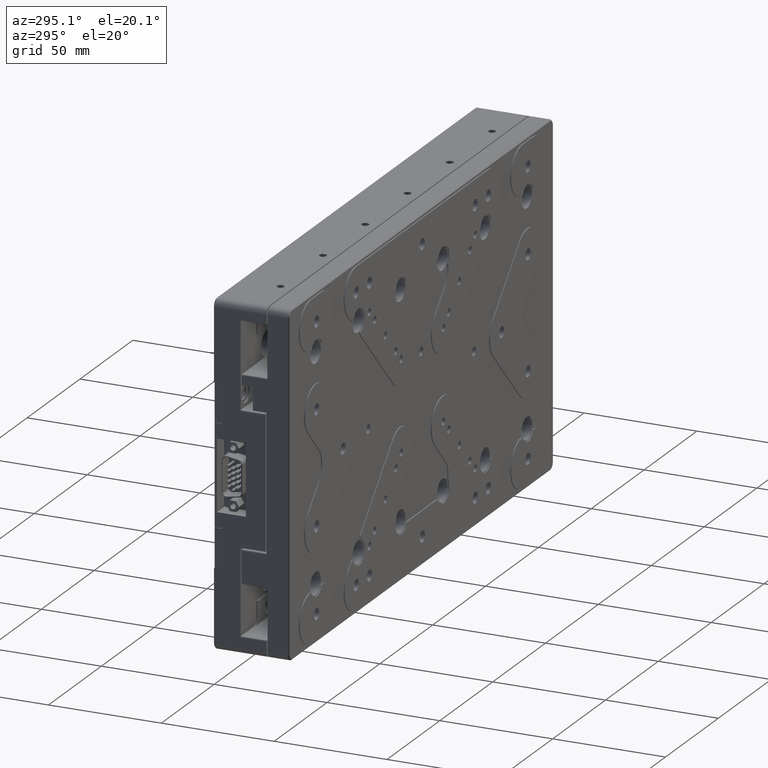
[diagram: clean part render]
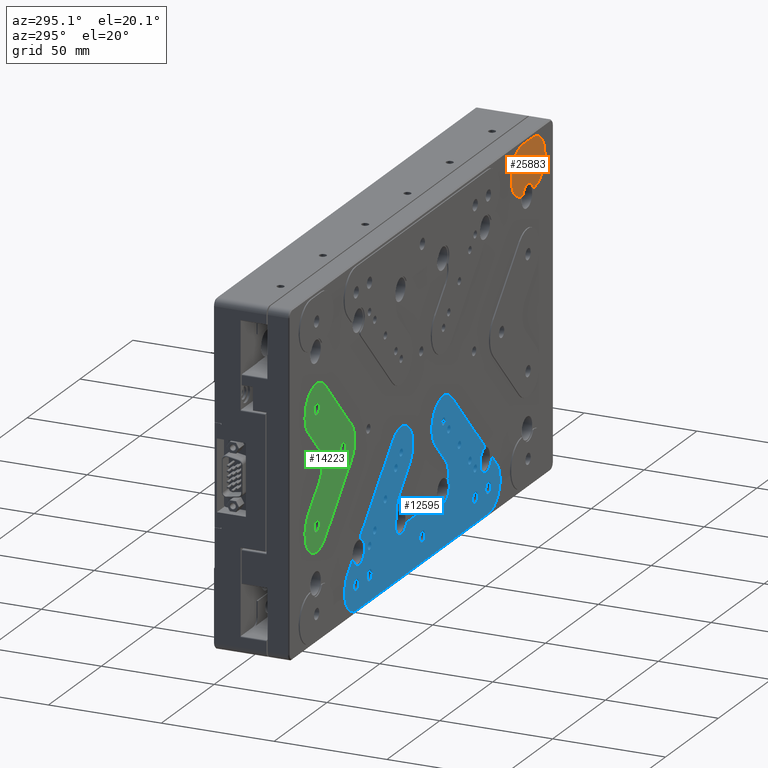
[diagram: same view with three faces highlighted in distinct colors, each labeled with its STEP entity id]
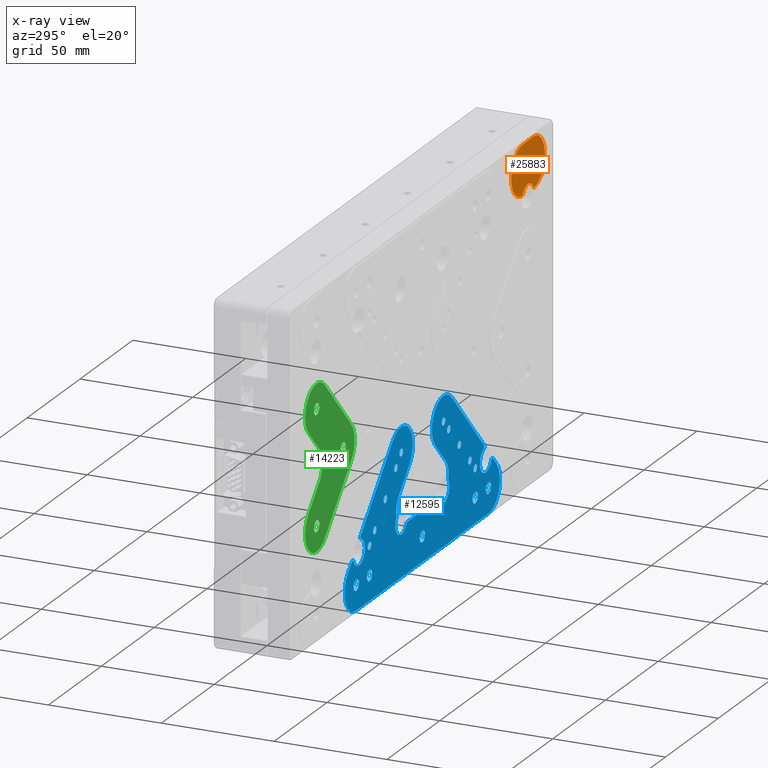
[diagram: x-ray of the same camera — body ghosted, the three highlighted faces saturated]
A machine part, auxiliary view with three faces highlighted in distinct colors.
The next image is the same camera in x-ray (body ghosted, the three faces saturated) — at least one of them is partly hidden behind the body in this view.
Their STEP definitions:

[orange] entity #25883 — the highlighted planar face has unit normal (0, -1, 0).
#203 = CIRCLE ( 'NONE', #4234, 1.000000000000000888 ) ;
#1012 = FACE_OUTER_BOUND ( 'NONE', #24530, .T. ) ;
#1215 = DIRECTION ( 'NONE',  ( -1.000000000000000000, 0.000000000000000000, -0.000000000000000000 ) ) ;
#2543 = EDGE_CURVE ( 'NONE', #8304, #6107, #25544, .T. ) ;
#2579 = ORIENTED_EDGE ( 'NONE', *, *, #9167, .F. ) ;
#3542 = ORIENTED_EDGE ( 'NONE', *, *, #2543, .F. ) ;
#3973 = DIRECTION ( 'NONE',  ( 0.000000000000000000, 0.000000000000000000, -1.000000000000000000 ) ) ;
#4234 = AXIS2_PLACEMENT_3D ( 'NONE', #25409, #9139, #11124 ) ;
#5423 = AXIS2_PLACEMENT_3D ( 'NONE', #22762, #19908, #6324 ) ;
#5477 = DIRECTION ( 'NONE',  ( 0.000000000000000000, 0.000000000000000000, -1.000000000000000000 ) ) ;
#6107 = VERTEX_POINT ( 'NONE', #30914 ) ;
#6324 = DIRECTION ( 'NONE',  ( 0.000000000000000000, 0.000000000000000000, 1.000000000000000000 ) ) ;
#6580 = LINE ( 'NONE', #31235, #32308 ) ;
#6658 = VERTEX_POINT ( 'NONE', #28990 ) ;
#8304 = VERTEX_POINT ( 'NONE', #11648 ) ;
#9139 = DIRECTION ( 'NONE',  ( 0.000000000000000000, 1.000000000000000000, 0.000000000000000000 ) ) ;
#9167 = EDGE_CURVE ( 'NONE', #10941, #14564, #31002, .T. ) ;
#9314 = CARTESIAN_POINT ( 'NONE',  ( 100.0000000000000000, -22.00000000000000000, 62.50000000000000000 ) ) ;
#10619 = AXIS2_PLACEMENT_3D ( 'NONE', #20091, #33705, #22784 ) ;
#10941 = VERTEX_POINT ( 'NONE', #14178 ) ;
#11124 = DIRECTION ( 'NONE',  ( 0.000000000000000000, 0.000000000000000000, 1.000000000000000000 ) ) ;
#11442 = VERTEX_POINT ( 'NONE', #15152 ) ;
#11531 = FACE_BOUND ( 'NONE', #12844, .T. ) ;
#11648 = CARTESIAN_POINT ( 'NONE',  ( 105.0000000000000000, -22.00000000000000000, 73.50000000000000000 ) ) ;
#12598 = EDGE_CURVE ( 'NONE', #6658, #6658, #22993, .T. ) ;
#12844 = EDGE_LOOP ( 'NONE', ( #19273 ) ) ;
#13135 = CARTESIAN_POINT ( 'NONE',  ( 105.0000000000000000, -22.00000000000000000, 62.50000000000000000 ) ) ;
#14178 = CARTESIAN_POINT ( 'NONE',  ( 95.13336153775856019, -22.00000000000000000, 52.06238757369442993 ) ) ;
#14564 = VERTEX_POINT ( 'NONE', #29190 ) ;
#15012 = AXIS2_PLACEMENT_3D ( 'NONE', #9314, #28449, #3973 ) ;
#15152 = CARTESIAN_POINT ( 'NONE',  ( 95.00000000000000000, -22.00000000000000000, 73.50000000000000000 ) ) ;
#16121 = CIRCLE ( 'NONE', #20684, 10.99999999999999645 ) ;
#16302 = ORIENTED_EDGE ( 'NONE', *, *, #19485, .T. ) ;
#17206 = CARTESIAN_POINT ( 'NONE',  ( 94.24851818099000411, -22.00000000000000000, 52.52827622345999714 ) ) ;
#17938 = ORIENTED_EDGE ( 'NONE', *, *, #21471, .F. ) ;
#19101 = VERTEX_POINT ( 'NONE', #20537 ) ;
#19273 = ORIENTED_EDGE ( 'NONE', *, *, #12598, .T. ) ;
#19485 = EDGE_CURVE ( 'NONE', #8304, #11442, #6580, .T. ) ;
#19566 = AXIS2_PLACEMENT_3D ( 'NONE', #17206, #30813, #33676 ) ;
#19908 = DIRECTION ( 'NONE',  ( 0.000000000000000000, 1.000000000000000000, 0.000000000000000000 ) ) ;
#20091 = CARTESIAN_POINT ( 'NONE',  ( -125.0000000000000000, -22.00000000000000000, 75.00000000000000000 ) ) ;
#20202 = DIRECTION ( 'NONE',  ( 0.000000000000000000, 0.000000000000000000, -1.000000000000000000 ) ) ;
#20537 = CARTESIAN_POINT ( 'NONE',  ( 104.8666384622328707, -22.00000000000000000, 52.06238757370267223 ) ) ;
#20684 = AXIS2_PLACEMENT_3D ( 'NONE', #25400, #21035, #20202 ) ;
#21035 = DIRECTION ( 'NONE',  ( -0.000000000000000000, 1.000000000000000000, -0.000000000000000000 ) ) ;
#21471 = EDGE_CURVE ( 'NONE', #14564, #11442, #16121, .T. ) ;
#22762 = CARTESIAN_POINT ( 'NONE',  ( 100.0000000000000000, -22.00000000000000000, 49.50000000000000000 ) ) ;
#22784 = DIRECTION ( 'NONE',  ( 0.000000000000000000, -0.000000000000000000, -1.000000000000000000 ) ) ;
#22993 = CIRCLE ( 'NONE', #15012, 2.500000000000002220 ) ;
#23735 = EDGE_CURVE ( 'NONE', #6107, #19101, #203, .T. ) ;
#24408 = DIRECTION ( 'NONE',  ( -0.000000000000000000, 1.000000000000000000, -0.000000000000000000 ) ) ;
#24530 = EDGE_LOOP ( 'NONE', ( #33260, #25099, #3542, #16302, #17938, #2579 ) ) ;
#25099 = ORIENTED_EDGE ( 'NONE', *, *, #23735, .F. ) ;
#25400 = CARTESIAN_POINT ( 'NONE',  ( 95.00000000000000000, -22.00000000000000000, 62.50000000000000000 ) ) ;
#25409 = CARTESIAN_POINT ( 'NONE',  ( 105.7514818190000057, -22.00000000000000000, 52.52827622345999714 ) ) ;
#25544 = CIRCLE ( 'NONE', #30114, 10.99999999999999645 ) ;
#25883 = ADVANCED_FACE ( 'NONE', ( #11531, #1012 ), #34059, .T. ) ;
#28449 = DIRECTION ( 'NONE',  ( -0.000000000000000000, 1.000000000000000000, -0.000000000000000000 ) ) ;
#28826 = CIRCLE ( 'NONE', #5423, 5.499999999999998224 ) ;
#28990 = CARTESIAN_POINT ( 'NONE',  ( 100.0000000000000000, -22.00000000000000000, 60.00000000000000000 ) ) ;
#29190 = CARTESIAN_POINT ( 'NONE',  ( 94.17336999908440021, -22.00000000000000000, 51.53110384580170233 ) ) ;
#30114 = AXIS2_PLACEMENT_3D ( 'NONE', #13135, #24408, #5477 ) ;
#30813 = DIRECTION ( 'NONE',  ( -0.000000000000000000, 1.000000000000000000, -0.000000000000000000 ) ) ;
#30914 = CARTESIAN_POINT ( 'NONE',  ( 105.8266300008999963, -22.00000000000000000, 51.53110384580300973 ) ) ;
#31002 = CIRCLE ( 'NONE', #19566, 1.000000000000000888 ) ;
#31235 = CARTESIAN_POINT ( 'NONE',  ( 95.00000000000000000, -22.00000000000000000, 73.50000000000000000 ) ) ;
#32308 = VECTOR ( 'NONE', #1215, 1000.000000000000000 ) ;
#33260 = ORIENTED_EDGE ( 'NONE', *, *, #34267, .T. ) ;
#33676 = DIRECTION ( 'NONE',  ( 2.775557561562888827E-14, 0.000000000000000000, -1.000000000000000000 ) ) ;
#33705 = DIRECTION ( 'NONE',  ( 0.000000000000000000, -1.000000000000000000, 0.000000000000000000 ) ) ;
#34059 = PLANE ( 'NONE',  #10619 ) ;
#34267 = EDGE_CURVE ( 'NONE', #10941, #19101, #28826, .T. ) ;

[blue] entity #12595 — the highlighted planar face has unit normal (0, -1, 0).
#80 = CARTESIAN_POINT ( 'NONE',  ( -25.00000000000000000, -22.00000000000000000, -25.00000000000000000 ) ) ;
#273 = DIRECTION ( 'NONE',  ( 9.462128050782584868E-16, 0.000000000000000000, -1.000000000000000000 ) ) ;
#292 = VERTEX_POINT ( 'NONE', #22074 ) ;
#379 = EDGE_LOOP ( 'NONE', ( #30784 ) ) ;
#431 = ORIENTED_EDGE ( 'NONE', *, *, #5588, .T. ) ;
#453 = CARTESIAN_POINT ( 'NONE',  ( -22.28679656440368717, -22.00000000000000000, -37.84314575050630935 ) ) ;
#460 = AXIS2_PLACEMENT_3D ( 'NONE', #15400, #31858, #31489 ) ;
#552 = CARTESIAN_POINT ( 'NONE',  ( 25.00000000000000000, -22.00000000000000000, -26.64999999999999858 ) ) ;
#634 = CIRCLE ( 'NONE', #8642, 1.000000000000000888 ) ;
#648 = ORIENTED_EDGE ( 'NONE', *, *, #2919, .F. ) ;
#666 = EDGE_CURVE ( 'NONE', #27412, #17275, #21666, .T. ) ;
#759 = FACE_BOUND ( 'NONE', #26667, .T. ) ;
#975 = DIRECTION ( 'NONE',  ( 0.000000000000000000, 0.000000000000000000, 1.000000000000000000 ) ) ;
#994 = EDGE_LOOP ( 'NONE', ( #14647 ) ) ;
#1106 = EDGE_CURVE ( 'NONE', #26120, #33553, #12884, .T. ) ;
#1321 = VECTOR ( 'NONE', #13518, 1000.000000000000000 ) ;
#1667 = EDGE_LOOP ( 'NONE', ( #5573 ) ) ;
#1722 = CIRCLE ( 'NONE', #7411, 1.000000000000000888 ) ;
#1723 = DIRECTION ( 'NONE',  ( -0.000000000000000000, 1.000000000000000000, -0.000000000000000000 ) ) ;
#1728 = ORIENTED_EDGE ( 'NONE', *, *, #27016, .T. ) ;
#1735 = CARTESIAN_POINT ( 'NONE',  ( 35.00000000000000000, -22.00000000000000000, -36.64999999999999858 ) ) ;
#1758 = CIRCLE ( 'NONE', #24572, 5.499999999999998224 ) ;
#1768 = LINE ( 'NONE', #12638, #30143 ) ;
#2038 = DIRECTION ( 'NONE',  ( -0.7071067811865474617, 0.000000000000000000, -0.7071067811865474617 ) ) ;
#2110 = VERTEX_POINT ( 'NONE', #2662 ) ;
#2252 = DIRECTION ( 'NONE',  ( 0.000000000000000000, 0.000000000000000000, 1.000000000000000000 ) ) ;
#2269 = CARTESIAN_POINT ( 'NONE',  ( -20.00000000000000000, -22.00000000000000000, -20.00000000000000000 ) ) ;
#2285 = CARTESIAN_POINT ( 'NONE',  ( -16.62994231491000008, -22.00000000000000000, -43.50000000000000711 ) ) ;
#2318 = CARTESIAN_POINT ( 'NONE',  ( -70.27817459304999659, -22.00000000000000000, -54.72182540695000341 ) ) ;
#2422 = DIRECTION ( 'NONE',  ( 0.000000000000000000, 0.000000000000000000, -1.000000000000000000 ) ) ;
#2550 = DIRECTION ( 'NONE',  ( 0.000000000000000000, 0.000000000000000000, -1.000000000000000000 ) ) ;
#2589 = EDGE_CURVE ( 'NONE', #10068, #11600, #22681, .T. ) ;
#2662 = CARTESIAN_POINT ( 'NONE',  ( -14.23371870265999917, -22.00000000000000000, -51.50000000000000711 ) ) ;
#2706 = DIRECTION ( 'NONE',  ( 0.7071067811865474617, 0.000000000000000000, 0.7071067811865474617 ) ) ;
#2713 = DIRECTION ( 'NONE',  ( 0.000000000000000000, 0.000000000000000000, -1.000000000000000000 ) ) ;
#2798 = DIRECTION ( 'NONE',  ( 0.000000000000000000, 1.000000000000000000, 0.000000000000000000 ) ) ;
#2919 = EDGE_CURVE ( 'NONE', #11236, #14562, #23289, .T. ) ;
#2922 = ORIENTED_EDGE ( 'NONE', *, *, #6135, .F. ) ;
#2957 = ORIENTED_EDGE ( 'NONE', *, *, #15835, .T. ) ;
#3042 = ORIENTED_EDGE ( 'NONE', *, *, #29102, .T. ) ;
#3045 = VERTEX_POINT ( 'NONE', #11608 ) ;
#3196 = CARTESIAN_POINT ( 'NONE',  ( -50.00000000000000000, -22.00000000000000000, -51.64999999999999858 ) ) ;
#3556 = AXIS2_PLACEMENT_3D ( 'NONE', #24392, #26733, #2252 ) ;
#3611 = FACE_BOUND ( 'NONE', #994, .T. ) ;
#3721 = VERTEX_POINT ( 'NONE', #20315 ) ;
#3764 = EDGE_LOOP ( 'NONE', ( #10530 ) ) ;
#3768 = DIRECTION ( 'NONE',  ( 0.000000000000000000, 0.000000000000000000, -1.000000000000000000 ) ) ;
#3802 = FACE_BOUND ( 'NONE', #23830, .T. ) ;
#3830 = CIRCLE ( 'NONE', #11245, 8.000000000000000000 ) ;
#3853 = ORIENTED_EDGE ( 'NONE', *, *, #1106, .F. ) ;
#3902 = AXIS2_PLACEMENT_3D ( 'NONE', #2269, #32626, #21554 ) ;
#4306 = VERTEX_POINT ( 'NONE', #18063 ) ;
#4330 = FACE_BOUND ( 'NONE', #21678, .T. ) ;
#4335 = CIRCLE ( 'NONE', #15151, 5.499999999999998224 ) ;
#4392 = ORIENTED_EDGE ( 'NONE', *, *, #22049, .T. ) ;
#4680 = CIRCLE ( 'NONE', #5828, 1.000000000000000888 ) ;
#4697 = CARTESIAN_POINT ( 'NONE',  ( -70.27817459304999659, -22.00000000000000000, -54.72182540695000341 ) ) ;
#4699 = CIRCLE ( 'NONE', #30398, 2.500000000000002220 ) ;
#4780 = CARTESIAN_POINT ( 'NONE',  ( 16.62994231491000008, -22.00000000000000000, -43.50000000000000711 ) ) ;
#5016 = AXIS2_PLACEMENT_3D ( 'NONE', #7445, #2798, #13673 ) ;
#5099 = DIRECTION ( 'NONE',  ( -0.000000000000000000, 1.000000000000000000, -0.000000000000000000 ) ) ;
#5113 = CARTESIAN_POINT ( 'NONE',  ( -20.00000000000000000, -22.00000000000000000, -20.00000000000000000 ) ) ;
#5261 = CIRCLE ( 'NONE', #25231, 10.99999999999999645 ) ;
#5286 = VERTEX_POINT ( 'NONE', #13790 ) ;
#5440 = ORIENTED_EDGE ( 'NONE', *, *, #15031, .T. ) ;
#5491 = DIRECTION ( 'NONE',  ( 0.000000000000000000, 0.000000000000000000, -1.000000000000000000 ) ) ;
#5573 = ORIENTED_EDGE ( 'NONE', *, *, #26910, .T. ) ;
#5588 = EDGE_CURVE ( 'NONE', #26120, #28427, #1758, .T. ) ;
#5712 = DIRECTION ( 'NONE',  ( -0.000000000000000000, 1.000000000000000000, -0.000000000000000000 ) ) ;
#5828 = AXIS2_PLACEMENT_3D ( 'NONE', #11160, #8480, #975 ) ;
#5896 = EDGE_CURVE ( 'NONE', #9034, #14562, #16272, .T. ) ;
#6109 = DIRECTION ( 'NONE',  ( -0.000000000000000000, 1.000000000000000000, -0.000000000000000000 ) ) ;
#6135 = EDGE_CURVE ( 'NONE', #27851, #32617, #634, .T. ) ;
#6150 = AXIS2_PLACEMENT_3D ( 'NONE', #14910, #6352, #23320 ) ;
#6199 = LINE ( 'NONE', #12418, #25523 ) ;
#6352 = DIRECTION ( 'NONE',  ( -0.000000000000000000, 1.000000000000000000, -0.000000000000000000 ) ) ;
#6438 = AXIS2_PLACEMENT_3D ( 'NONE', #22795, #19587, #6723 ) ;
#6444 = CARTESIAN_POINT ( 'NONE',  ( -66.74821156262578370, -22.00000000000000000, -51.19186237652423443 ) ) ;
#6456 = FACE_BOUND ( 'NONE', #16490, .T. ) ;
#6481 = EDGE_LOOP ( 'NONE', ( #18697 ) ) ;
#6614 = VERTEX_POINT ( 'NONE', #23215 ) ;
#6650 = DIRECTION ( 'NONE',  ( 0.000000000000000000, -1.000000000000000000, 0.000000000000000000 ) ) ;
#6679 = CARTESIAN_POINT ( 'NONE',  ( -70.27817459304999659, -22.00000000000000000, -54.72182540695000341 ) ) ;
#6723 = DIRECTION ( 'NONE',  ( 6.938893903907222067E-15, 0.000000000000000000, -1.000000000000000000 ) ) ;
#6732 = EDGE_CURVE ( 'NONE', #26305, #14850, #4680, .T. ) ;
#6747 = EDGE_CURVE ( 'NONE', #28664, #5286, #30930, .T. ) ;
#6783 = VERTEX_POINT ( 'NONE', #17842 ) ;
#7054 = AXIS2_PLACEMENT_3D ( 'NONE', #8167, #27300, #19065 ) ;
#7127 = AXIS2_PLACEMENT_3D ( 'NONE', #11274, #9112, #3768 ) ;
#7287 = ORIENTED_EDGE ( 'NONE', *, *, #14157, .T. ) ;
#7411 = AXIS2_PLACEMENT_3D ( 'NONE', #11756, #28544, #20653 ) ;
#7413 = CARTESIAN_POINT ( 'NONE',  ( 15.12083890225190608, -22.00000000000000000, -52.03846153845997691 ) ) ;
#7445 = CARTESIAN_POINT ( 'NONE',  ( -25.33468588810999833, -22.00000000000000000, -45.78635940414000771 ) ) ;
#7467 = EDGE_CURVE ( 'NONE', #24819, #31562, #34991, .T. ) ;
#7522 = VERTEX_POINT ( 'NONE', #26654 ) ;
#7941 = CARTESIAN_POINT ( 'NONE',  ( -62.50000000000000000, -22.00000000000000000, -62.50000000000000000 ) ) ;
#7948 = DIRECTION ( 'NONE',  ( 0.000000000000000000, 0.000000000000000000, -1.000000000000000000 ) ) ;
#7989 = DIRECTION ( 'NONE',  ( 0.000000000000000000, 0.000000000000000000, -1.000000000000000000 ) ) ;
#8059 = CARTESIAN_POINT ( 'NONE',  ( 45.00000000000000000, -22.00000000000000000, -45.00000000000000000 ) ) ;
#8060 = VERTEX_POINT ( 'NONE', #6679 ) ;
#8089 = LINE ( 'NONE', #15949, #31060 ) ;
#8141 = AXIS2_PLACEMENT_3D ( 'NONE', #8059, #18940, #2713 ) ;
#8167 = CARTESIAN_POINT ( 'NONE',  ( -50.00000000000000000, -22.00000000000000000, -50.00000000000000000 ) ) ;
#8211 = DIRECTION ( 'NONE',  ( -0.000000000000000000, 1.000000000000000000, -0.000000000000000000 ) ) ;
#8461 = DIRECTION ( 'NONE',  ( 0.7071067811865474617, 0.000000000000000000, -0.7071067811865474617 ) ) ;
#8480 = DIRECTION ( 'NONE',  ( 0.000000000000000000, 1.000000000000000000, 0.000000000000000000 ) ) ;
#8642 = AXIS2_PLACEMENT_3D ( 'NONE', #14116, #25721, #33081 ) ;
#9034 = VERTEX_POINT ( 'NONE', #453 ) ;
#9112 = DIRECTION ( 'NONE',  ( -0.000000000000000000, 1.000000000000000000, -0.000000000000000000 ) ) ;
#9249 = CARTESIAN_POINT ( 'NONE',  ( 62.50000000000000000, -22.00000000000000000, -62.50000000000000000 ) ) ;
#9341 = CIRCLE ( 'NONE', #24152, 1.649999999999998579 ) ;
#9578 = CARTESIAN_POINT ( 'NONE',  ( 62.50000000000000000, -22.00000000000000000, -62.50000000000000000 ) ) ;
#9663 = CARTESIAN_POINT ( 'NONE',  ( 66.74821156262500210, -22.00000000000000000, -51.19186237652500893 ) ) ;
#9675 = CARTESIAN_POINT ( 'NONE',  ( 62.50000000000000000, -22.00000000000000000, -73.50000000000000000 ) ) ;
#9882 = CARTESIAN_POINT ( 'NONE',  ( -12.22182540694999986, -22.00000000000000000, -27.77817459305000014 ) ) ;
#9901 = CIRCLE ( 'NONE', #20148, 5.499999999999998224 ) ;
#9976 = DIRECTION ( 'NONE',  ( 0.000000000000000000, 1.000000000000000000, 0.000000000000000000 ) ) ;
#10068 = VERTEX_POINT ( 'NONE', #31257 ) ;
#10216 = DIRECTION ( 'NONE',  ( -0.000000000000000000, 1.000000000000000000, -0.000000000000000000 ) ) ;
#10347 = AXIS2_PLACEMENT_3D ( 'NONE', #16248, #8211, #21074 ) ;
#10395 = CIRCLE ( 'NONE', #3556, 5.499999999999998224 ) ;
#10472 = VECTOR ( 'NONE', #2038, 1000.000000000000114 ) ;
#10530 = ORIENTED_EDGE ( 'NONE', *, *, #14383, .T. ) ;
#10548 = CARTESIAN_POINT ( 'NONE',  ( 58.30813762347576557, -22.00000000000000000, -42.75178843737423051 ) ) ;
#10610 = ORIENTED_EDGE ( 'NONE', *, *, #25169, .T. ) ;
#10632 = CARTESIAN_POINT ( 'NONE',  ( -57.97010302039867469, -22.00000000000000000, -44.38829595416571294 ) ) ;
#10667 = CIRCLE ( 'NONE', #22085, 10.99999999999999645 ) ;
#10718 = CARTESIAN_POINT ( 'NONE',  ( 57.60103084229000103, -22.00000000000000000, -43.45889521856000215 ) ) ;
#10841 = DIRECTION ( 'NONE',  ( -0.000000000000000000, 1.000000000000000000, -0.000000000000000000 ) ) ;
#10964 = DIRECTION ( 'NONE',  ( -0.000000000000000000, 1.000000000000000000, -0.000000000000000000 ) ) ;
#10969 = EDGE_CURVE ( 'NONE', #292, #292, #17280, .T. ) ;
#11150 = ORIENTED_EDGE ( 'NONE', *, *, #666, .T. ) ;
#11160 = CARTESIAN_POINT ( 'NONE',  ( -66.04110478143999785, -22.00000000000000000, -51.89896915770999897 ) ) ;
#11236 = VERTEX_POINT ( 'NONE', #15575 ) ;
#11245 = AXIS2_PLACEMENT_3D ( 'NONE', #4780, #29259, #7989 ) ;
#11274 = CARTESIAN_POINT ( 'NONE',  ( 25.00000000000000000, -22.00000000000000000, -25.00000000000000000 ) ) ;
#11376 = CARTESIAN_POINT ( 'NONE',  ( 0.000000000000000000, -22.00000000000000000, -62.50000000000000000 ) ) ;
#11600 = VERTEX_POINT ( 'NONE', #28564 ) ;
#11608 = CARTESIAN_POINT ( 'NONE',  ( -35.00000000000000000, -22.00000000000000000, -36.64999999999999858 ) ) ;
#11685 = CARTESIAN_POINT ( 'NONE',  ( -62.50000000000000000, -22.00000000000000000, -73.50000000000000000 ) ) ;
#11698 = EDGE_CURVE ( 'NONE', #10068, #9034, #27043, .T. ) ;
#11756 = CARTESIAN_POINT ( 'NONE',  ( -14.23371870265999917, -22.00000000000000000, -52.50000000000000000 ) ) ;
#12151 = AXIS2_PLACEMENT_3D ( 'NONE', #25587, #6650, #17542 ) ;
#12183 = ORIENTED_EDGE ( 'NONE', *, *, #2589, .F. ) ;
#12418 = CARTESIAN_POINT ( 'NONE',  ( 27.77817459305000014, -22.00000000000000000, -12.22182540694999986 ) ) ;
#12442 = VERTEX_POINT ( 'NONE', #1735 ) ;
#12595 = ADVANCED_FACE ( 'NONE', ( #34167, #17707, #22722, #6456, #28809, #17170, #4330, #3802, #22552, #759, #33472, #3611, #17359, #28276, #14499, #25410 ), #14675, .T. ) ;
#12637 = CARTESIAN_POINT ( 'NONE',  ( -20.00000000000000000, -22.00000000000000000, -49.50000000000000000 ) ) ;
#12638 = CARTESIAN_POINT ( 'NONE',  ( 27.77817459305000014, -22.00000000000000000, -12.22182540694999986 ) ) ;
#12841 = VERTEX_POINT ( 'NONE', #16226 ) ;
#12884 = CIRCLE ( 'NONE', #15742, 1.000000000000000888 ) ;
#13051 = CARTESIAN_POINT ( 'NONE',  ( 50.00000000000000000, -22.00000000000000000, -51.64999999999999858 ) ) ;
#13248 = CIRCLE ( 'NONE', #17826, 1.649999999999998579 ) ;
#13314 = ORIENTED_EDGE ( 'NONE', *, *, #17742, .T. ) ;
#13339 = CIRCLE ( 'NONE', #19624, 1.649999999999998579 ) ;
#13479 = CARTESIAN_POINT ( 'NONE',  ( 20.00000000000000000, -22.00000000000000000, -20.00000000000000000 ) ) ;
#13518 = DIRECTION ( 'NONE',  ( -1.000000000000000000, 0.000000000000000000, -0.000000000000000000 ) ) ;
#13673 = DIRECTION ( 'NONE',  ( 0.000000000000000000, 0.000000000000000000, 1.000000000000000000 ) ) ;
#13674 = EDGE_CURVE ( 'NONE', #34002, #34002, #25185, .T. ) ;
#13737 = CARTESIAN_POINT ( 'NONE',  ( 66.04110478143999785, -22.00000000000000000, -51.89896915770999897 ) ) ;
#13790 = CARTESIAN_POINT ( 'NONE',  ( 27.77817459305000014, -22.00000000000000000, -12.22182540694999986 ) ) ;
#13969 = EDGE_LOOP ( 'NONE', ( #31487 ) ) ;
#14116 = CARTESIAN_POINT ( 'NONE',  ( 14.23371870265999917, -22.00000000000000000, -52.50000000000000000 ) ) ;
#14157 = EDGE_CURVE ( 'NONE', #7522, #7522, #4699, .T. ) ;
#14211 = ORIENTED_EDGE ( 'NONE', *, *, #5896, .T. ) ;
#14280 = EDGE_CURVE ( 'NONE', #4306, #32617, #10395, .T. ) ;
#14383 = EDGE_CURVE ( 'NONE', #32702, #32702, #13248, .T. ) ;
#14499 = FACE_BOUND ( 'NONE', #13969, .T. ) ;
#14554 = EDGE_LOOP ( 'NONE', ( #24442 ) ) ;
#14562 = VERTEX_POINT ( 'NONE', #9882 ) ;
#14612 = CARTESIAN_POINT ( 'NONE',  ( 25.33468588810999833, -22.00000000000000000, -45.78635940414000771 ) ) ;
#14647 = ORIENTED_EDGE ( 'NONE', *, *, #16417, .T. ) ;
#14675 = PLANE ( 'NONE',  #12151 ) ;
#14850 = VERTEX_POINT ( 'NONE', #32941 ) ;
#14910 = CARTESIAN_POINT ( 'NONE',  ( 35.00000000000000000, -22.00000000000000000, -35.00000000000000000 ) ) ;
#15031 = EDGE_CURVE ( 'NONE', #35056, #11600, #9901, .T. ) ;
#15055 = AXIS2_PLACEMENT_3D ( 'NONE', #10718, #29322, #29840 ) ;
#15135 = VECTOR ( 'NONE', #24095, 1000.000000000000114 ) ;
#15151 = AXIS2_PLACEMENT_3D ( 'NONE', #29340, #34539, #20751 ) ;
#15160 = AXIS2_PLACEMENT_3D ( 'NONE', #14612, #17470, #31057 ) ;
#15400 = CARTESIAN_POINT ( 'NONE',  ( -45.00000000000000000, -22.00000000000000000, -45.00000000000000000 ) ) ;
#15435 = ORIENTED_EDGE ( 'NONE', *, *, #32763, .T. ) ;
#15514 = EDGE_CURVE ( 'NONE', #24315, #24315, #13339, .T. ) ;
#15575 = CARTESIAN_POINT ( 'NONE',  ( -27.77817459305100556, -22.00000000000000000, -12.22182540694899089 ) ) ;
#15596 = AXIS2_PLACEMENT_3D ( 'NONE', #2285, #10841, #29266 ) ;
#15742 = AXIS2_PLACEMENT_3D ( 'NONE', #13737, #5712, #33229 ) ;
#15835 = EDGE_CURVE ( 'NONE', #28664, #23832, #8089, .T. ) ;
#15921 = EDGE_LOOP ( 'NONE', ( #15435 ) ) ;
#15949 = CARTESIAN_POINT ( 'NONE',  ( 22.28679656439999945, -22.00000000000000000, -37.84314575050999707 ) ) ;
#15988 = DIRECTION ( 'NONE',  ( -0.000000000000000000, 1.000000000000000000, -0.000000000000000000 ) ) ;
#16097 = CARTESIAN_POINT ( 'NONE',  ( -62.50000000000000000, -22.00000000000000000, -62.50000000000000000 ) ) ;
#16226 = CARTESIAN_POINT ( 'NONE',  ( 20.00000000000000000, -22.00000000000000000, -21.64999999999999858 ) ) ;
#16248 = CARTESIAN_POINT ( 'NONE',  ( -50.00000000000000000, -22.00000000000000000, -62.50000000000000000 ) ) ;
#16251 = CIRCLE ( 'NONE', #7127, 1.649999999999998579 ) ;
#16272 = LINE ( 'NONE', #19309, #25723 ) ;
#16417 = EDGE_CURVE ( 'NONE', #19997, #19997, #16251, .T. ) ;
#16490 = EDGE_LOOP ( 'NONE', ( #4392 ) ) ;
#16683 = DIRECTION ( 'NONE',  ( -0.000000000000000000, 1.000000000000000000, -0.000000000000000000 ) ) ;
#16871 = CARTESIAN_POINT ( 'NONE',  ( 50.00000000000000000, -22.00000000000000000, -62.50000000000000000 ) ) ;
#16907 = ORIENTED_EDGE ( 'NONE', *, *, #34375, .T. ) ;
#17170 = FACE_BOUND ( 'NONE', #14554, .T. ) ;
#17209 = EDGE_CURVE ( 'NONE', #24819, #14850, #4335, .T. ) ;
#17253 = AXIS2_PLACEMENT_3D ( 'NONE', #16871, #10964, #22230 ) ;
#17275 = VERTEX_POINT ( 'NONE', #9675 ) ;
#17280 = CIRCLE ( 'NONE', #17253, 2.500000000000002220 ) ;
#17288 = ORIENTED_EDGE ( 'NONE', *, *, #31956, .T. ) ;
#17357 = CIRCLE ( 'NONE', #15055, 1.000000000000000888 ) ;
#17359 = FACE_BOUND ( 'NONE', #33473, .T. ) ;
#17470 = DIRECTION ( 'NONE',  ( -0.000000000000000000, 1.000000000000000000, -0.000000000000000000 ) ) ;
#17497 = DIRECTION ( 'NONE',  ( -0.7071067811865474617, 0.000000000000000000, 0.7071067811865474617 ) ) ;
#17542 = DIRECTION ( 'NONE',  ( 0.000000000000000000, -0.000000000000000000, -1.000000000000000000 ) ) ;
#17601 = ORIENTED_EDGE ( 'NONE', *, *, #27692, .T. ) ;
#17707 = FACE_BOUND ( 'NONE', #3764, .T. ) ;
#17742 = EDGE_CURVE ( 'NONE', #3045, #3045, #28304, .T. ) ;
#17826 = AXIS2_PLACEMENT_3D ( 'NONE', #22238, #16683, #27608 ) ;
#17842 = CARTESIAN_POINT ( 'NONE',  ( -62.50000000000000000, -22.00000000000000000, -65.00000000000000000 ) ) ;
#18063 = CARTESIAN_POINT ( 'NONE',  ( 24.51396498224751497, -22.00000000000000000, -46.35768872658065476 ) ) ;
#18210 = ORIENTED_EDGE ( 'NONE', *, *, #26819, .T. ) ;
#18298 = ORIENTED_EDGE ( 'NONE', *, *, #6732, .F. ) ;
#18697 = ORIENTED_EDGE ( 'NONE', *, *, #15514, .T. ) ;
#18940 = DIRECTION ( 'NONE',  ( -0.000000000000000000, 1.000000000000000000, -0.000000000000000000 ) ) ;
#19056 = CARTESIAN_POINT ( 'NONE',  ( -16.62994231491000008, -22.00000000000000000, -51.50000000000000711 ) ) ;
#19065 = DIRECTION ( 'NONE',  ( 0.000000000000000000, 0.000000000000000000, -1.000000000000000000 ) ) ;
#19164 = ORIENTED_EDGE ( 'NONE', *, *, #26797, .F. ) ;
#19309 = CARTESIAN_POINT ( 'NONE',  ( -12.22182540694999986, -22.00000000000000000, -27.77817459305000014 ) ) ;
#19330 = ORIENTED_EDGE ( 'NONE', *, *, #23948, .F. ) ;
#19373 = CARTESIAN_POINT ( 'NONE',  ( 12.22182540694648978, -22.00000000000000000, -27.77817459305351022 ) ) ;
#19468 = EDGE_CURVE ( 'NONE', #4306, #22414, #31169, .T. ) ;
#19471 = DIRECTION ( 'NONE',  ( -0.000000000000000000, 1.000000000000000000, -0.000000000000000000 ) ) ;
#19491 = AXIS2_PLACEMENT_3D ( 'NONE', #33316, #30965, #273 ) ;
#19587 = DIRECTION ( 'NONE',  ( -0.000000000000000000, 1.000000000000000000, -0.000000000000000000 ) ) ;
#19624 = AXIS2_PLACEMENT_3D ( 'NONE', #5113, #15988, #2422 ) ;
#19677 = DIRECTION ( 'NONE',  ( 0.000000000000000000, 0.000000000000000000, -1.000000000000000000 ) ) ;
#19997 = VERTEX_POINT ( 'NONE', #552 ) ;
#20069 = AXIS2_PLACEMENT_3D ( 'NONE', #13479, #5099, #7948 ) ;
#20142 = DIRECTION ( 'NONE',  ( -0.000000000000000000, 1.000000000000000000, -0.000000000000000000 ) ) ;
#20148 = AXIS2_PLACEMENT_3D ( 'NONE', #12637, #9976, #29109 ) ;
#20163 = EDGE_CURVE ( 'NONE', #6783, #6783, #32337, .T. ) ;
#20315 = CARTESIAN_POINT ( 'NONE',  ( -45.00000000000000000, -22.00000000000000000, -46.64999999999999858 ) ) ;
#20364 = AXIS2_PLACEMENT_3D ( 'NONE', #11376, #21916, #5491 ) ;
#20482 = CARTESIAN_POINT ( 'NONE',  ( 0.000000000000000000, -22.00000000000000000, -65.00000000000000000 ) ) ;
#20653 = DIRECTION ( 'NONE',  ( -1.734723475976805517E-15, 0.000000000000000000, -1.000000000000000000 ) ) ;
#20751 = DIRECTION ( 'NONE',  ( 0.000000000000000000, 0.000000000000000000, 1.000000000000000000 ) ) ;
#20827 = CARTESIAN_POINT ( 'NONE',  ( 57.97010302039867469, -22.00000000000000000, -44.38829595416571294 ) ) ;
#21074 = DIRECTION ( 'NONE',  ( 0.000000000000000000, 0.000000000000000000, -1.000000000000000000 ) ) ;
#21280 = ORIENTED_EDGE ( 'NONE', *, *, #13674, .T. ) ;
#21302 = CIRCLE ( 'NONE', #20069, 1.649999999999998579 ) ;
#21428 = LINE ( 'NONE', #2318, #15135 ) ;
#21517 = CARTESIAN_POINT ( 'NONE',  ( 65.11170404583360494, -22.00000000000000000, -51.52989697960104820 ) ) ;
#21554 = DIRECTION ( 'NONE',  ( 0.000000000000000000, 0.000000000000000000, -1.000000000000000000 ) ) ;
#21582 = DIRECTION ( 'NONE',  ( 0.000000000000000000, 0.000000000000000000, 1.000000000000000000 ) ) ;
#21649 = EDGE_CURVE ( 'NONE', #27851, #2110, #32469, .T. ) ;
#21666 = LINE ( 'NONE', #32573, #26573 ) ;
#21678 = EDGE_LOOP ( 'NONE', ( #23136 ) ) ;
#21762 = EDGE_LOOP ( 'NONE', ( #13314 ) ) ;
#21916 = DIRECTION ( 'NONE',  ( -0.000000000000000000, 1.000000000000000000, -0.000000000000000000 ) ) ;
#22049 = EDGE_CURVE ( 'NONE', #12841, #12841, #21302, .T. ) ;
#22051 = DIRECTION ( 'NONE',  ( 0.000000000000000000, 0.000000000000000000, -1.000000000000000000 ) ) ;
#22074 = CARTESIAN_POINT ( 'NONE',  ( 50.00000000000000000, -22.00000000000000000, -65.00000000000000000 ) ) ;
#22085 = AXIS2_PLACEMENT_3D ( 'NONE', #9249, #20142, #28557 ) ;
#22170 = CARTESIAN_POINT ( 'NONE',  ( -35.00000000000000000, -22.00000000000000000, -35.00000000000000000 ) ) ;
#22230 = DIRECTION ( 'NONE',  ( 0.000000000000000000, 0.000000000000000000, -1.000000000000000000 ) ) ;
#22238 = CARTESIAN_POINT ( 'NONE',  ( 50.00000000000000000, -22.00000000000000000, -50.00000000000000000 ) ) ;
#22414 = VERTEX_POINT ( 'NONE', #27018 ) ;
#22431 = EDGE_CURVE ( 'NONE', #27412, #8060, #5261, .T. ) ;
#22552 = FACE_BOUND ( 'NONE', #30297, .T. ) ;
#22681 = CIRCLE ( 'NONE', #5016, 1.000000000000000888 ) ;
#22688 = CIRCLE ( 'NONE', #460, 1.649999999999998579 ) ;
#22722 = FACE_BOUND ( 'NONE', #6481, .T. ) ;
#22795 = CARTESIAN_POINT ( 'NONE',  ( -57.60103084229000103, -22.00000000000000000, -43.45889521856000215 ) ) ;
#22885 = CARTESIAN_POINT ( 'NONE',  ( 22.28679656440000301, -22.00000000000000000, -37.84314575050999707 ) ) ;
#23089 = CARTESIAN_POINT ( 'NONE',  ( -58.30813762347500528, -22.00000000000000000, -42.75178843737501211 ) ) ;
#23136 = ORIENTED_EDGE ( 'NONE', *, *, #20163, .T. ) ;
#23215 = CARTESIAN_POINT ( 'NONE',  ( -25.00000000000000000, -22.00000000000000000, -26.64999999999999858 ) ) ;
#23289 = CIRCLE ( 'NONE', #3902, 11.00000000000000000 ) ;
#23320 = DIRECTION ( 'NONE',  ( 0.000000000000000000, 0.000000000000000000, -1.000000000000000000 ) ) ;
#23385 = EDGE_CURVE ( 'NONE', #28006, #28006, #33869, .T. ) ;
#23537 = CIRCLE ( 'NONE', #8141, 1.649999999999998579 ) ;
#23598 = CARTESIAN_POINT ( 'NONE',  ( 70.27817459305100556, -22.00000000000000000, -54.72182540694898734 ) ) ;
#23694 = DIRECTION ( 'NONE',  ( 0.000000000000000000, 0.000000000000000000, -1.000000000000000000 ) ) ;
#23830 = EDGE_LOOP ( 'NONE', ( #7287 ) ) ;
#23832 = VERTEX_POINT ( 'NONE', #22885 ) ;
#23875 = VERTEX_POINT ( 'NONE', #23598 ) ;
#23948 = EDGE_CURVE ( 'NONE', #34884, #28427, #17357, .T. ) ;
#23950 = ORIENTED_EDGE ( 'NONE', *, *, #11698, .T. ) ;
#24095 = DIRECTION ( 'NONE',  ( -0.7071067811865474617, 0.000000000000000000, -0.7071067811865474617 ) ) ;
#24152 = AXIS2_PLACEMENT_3D ( 'NONE', #80, #27938, #22051 ) ;
#24267 = CARTESIAN_POINT ( 'NONE',  ( 60.00000000000000000, -22.00000000000000000, -49.50000000000000000 ) ) ;
#24315 = VERTEX_POINT ( 'NONE', #35233 ) ;
#24392 = CARTESIAN_POINT ( 'NONE',  ( 20.00000000000000000, -22.00000000000000000, -49.50000000000000000 ) ) ;
#24442 = ORIENTED_EDGE ( 'NONE', *, *, #27021, .T. ) ;
#24572 = AXIS2_PLACEMENT_3D ( 'NONE', #24267, #34660, #21582 ) ;
#24819 = VERTEX_POINT ( 'NONE', #10632 ) ;
#25169 = EDGE_CURVE ( 'NONE', #11236, #31562, #21428, .T. ) ;
#25185 = CIRCLE ( 'NONE', #10347, 2.500000000000002220 ) ;
#25231 = AXIS2_PLACEMENT_3D ( 'NONE', #16097, #10216, #2550 ) ;
#25410 = FACE_OUTER_BOUND ( 'NONE', #32141, .T. ) ;
#25523 = VECTOR ( 'NONE', #30847, 1000.000000000000114 ) ;
#25587 = CARTESIAN_POINT ( 'NONE',  ( -125.0000000000000000, -22.00000000000000000, 75.00000000000000000 ) ) ;
#25721 = DIRECTION ( 'NONE',  ( 0.000000000000000000, 1.000000000000000000, 0.000000000000000000 ) ) ;
#25723 = VECTOR ( 'NONE', #2706, 1000.000000000000114 ) ;
#26054 = ORIENTED_EDGE ( 'NONE', *, *, #7467, .F. ) ;
#26120 = VERTEX_POINT ( 'NONE', #21517 ) ;
#26305 = VERTEX_POINT ( 'NONE', #6444 ) ;
#26573 = VECTOR ( 'NONE', #29554, 1000.000000000000000 ) ;
#26593 = AXIS2_PLACEMENT_3D ( 'NONE', #22170, #19471, #33082 ) ;
#26631 = AXIS2_PLACEMENT_3D ( 'NONE', #7941, #6109, #19677 ) ;
#26654 = CARTESIAN_POINT ( 'NONE',  ( 62.50000000000000000, -22.00000000000000000, -65.00000000000000000 ) ) ;
#26667 = EDGE_LOOP ( 'NONE', ( #17288 ) ) ;
#26706 = ORIENTED_EDGE ( 'NONE', *, *, #6747, .F. ) ;
#26733 = DIRECTION ( 'NONE',  ( 0.000000000000000000, 1.000000000000000000, 0.000000000000000000 ) ) ;
#26797 = EDGE_CURVE ( 'NONE', #23875, #17275, #10667, .T. ) ;
#26819 = EDGE_CURVE ( 'NONE', #23832, #22414, #3830, .T. ) ;
#26910 = EDGE_CURVE ( 'NONE', #34435, #34435, #31778, .T. ) ;
#27016 = EDGE_CURVE ( 'NONE', #34884, #5286, #6199, .T. ) ;
#27018 = CARTESIAN_POINT ( 'NONE',  ( 24.36749215775230937, -22.00000000000000000, -45.53231947034836224 ) ) ;
#27021 = EDGE_CURVE ( 'NONE', #12442, #12442, #31242, .T. ) ;
#27043 = CIRCLE ( 'NONE', #15596, 8.000000000000000000 ) ;
#27300 = DIRECTION ( 'NONE',  ( -0.000000000000000000, 1.000000000000000000, -0.000000000000000000 ) ) ;
#27412 = VERTEX_POINT ( 'NONE', #11685 ) ;
#27608 = DIRECTION ( 'NONE',  ( 0.000000000000000000, 0.000000000000000000, -1.000000000000000000 ) ) ;
#27692 = EDGE_CURVE ( 'NONE', #3721, #3721, #22688, .T. ) ;
#27851 = VERTEX_POINT ( 'NONE', #35259 ) ;
#27938 = DIRECTION ( 'NONE',  ( -0.000000000000000000, 1.000000000000000000, -0.000000000000000000 ) ) ;
#28006 = VERTEX_POINT ( 'NONE', #3196 ) ;
#28238 = VERTEX_POINT ( 'NONE', #30379 ) ;
#28276 = FACE_BOUND ( 'NONE', #1667, .T. ) ;
#28304 = CIRCLE ( 'NONE', #26593, 1.649999999999998579 ) ;
#28427 = VERTEX_POINT ( 'NONE', #20827 ) ;
#28544 = DIRECTION ( 'NONE',  ( -0.000000000000000000, 1.000000000000000000, -0.000000000000000000 ) ) ;
#28557 = DIRECTION ( 'NONE',  ( 0.000000000000000000, 0.000000000000000000, -1.000000000000000000 ) ) ;
#28564 = CARTESIAN_POINT ( 'NONE',  ( -24.51396498224690745, -22.00000000000000000, -46.35768872658108108 ) ) ;
#28664 = VERTEX_POINT ( 'NONE', #19373 ) ;
#28809 = FACE_BOUND ( 'NONE', #21762, .T. ) ;
#29102 = EDGE_CURVE ( 'NONE', #23875, #33553, #1768, .T. ) ;
#29109 = DIRECTION ( 'NONE',  ( 0.000000000000000000, 0.000000000000000000, 1.000000000000000000 ) ) ;
#29259 = DIRECTION ( 'NONE',  ( -0.000000000000000000, 1.000000000000000000, -0.000000000000000000 ) ) ;
#29266 = DIRECTION ( 'NONE',  ( 0.000000000000000000, 0.000000000000000000, -1.000000000000000000 ) ) ;
#29322 = DIRECTION ( 'NONE',  ( 0.000000000000000000, 1.000000000000000000, 0.000000000000000000 ) ) ;
#29340 = CARTESIAN_POINT ( 'NONE',  ( -60.00000000000000000, -22.00000000000000000, -49.50000000000000000 ) ) ;
#29554 = DIRECTION ( 'NONE',  ( 1.000000000000000000, 0.000000000000000000, -0.000000000000000000 ) ) ;
#29840 = DIRECTION ( 'NONE',  ( 0.000000000000000000, 0.000000000000000000, 1.000000000000000000 ) ) ;
#29919 = ORIENTED_EDGE ( 'NONE', *, *, #14280, .T. ) ;
#30143 = VECTOR ( 'NONE', #17497, 1000.000000000000114 ) ;
#30204 = CARTESIAN_POINT ( 'NONE',  ( -15.12083890225009597, -22.00000000000000000, -52.03846153846092193 ) ) ;
#30297 = EDGE_LOOP ( 'NONE', ( #17601 ) ) ;
#30379 = CARTESIAN_POINT ( 'NONE',  ( 45.00000000000000000, -22.00000000000000000, -46.64999999999999858 ) ) ;
#30398 = AXIS2_PLACEMENT_3D ( 'NONE', #9578, #1723, #23694 ) ;
#30482 = ORIENTED_EDGE ( 'NONE', *, *, #19468, .F. ) ;
#30711 = EDGE_CURVE ( 'NONE', #35056, #2110, #1722, .T. ) ;
#30784 = ORIENTED_EDGE ( 'NONE', *, *, #23385, .T. ) ;
#30847 = DIRECTION ( 'NONE',  ( -0.7071067811865474617, 0.000000000000000000, 0.7071067811865474617 ) ) ;
#30930 = CIRCLE ( 'NONE', #19491, 11.00000000000000000 ) ;
#30965 = DIRECTION ( 'NONE',  ( -0.000000000000000000, 1.000000000000000000, -0.000000000000000000 ) ) ;
#31057 = DIRECTION ( 'NONE',  ( 6.938893903907222067E-15, 0.000000000000000000, -1.000000000000000000 ) ) ;
#31060 = VECTOR ( 'NONE', #8461, 1000.000000000000114 ) ;
#31169 = CIRCLE ( 'NONE', #15160, 1.000000000000000888 ) ;
#31242 = CIRCLE ( 'NONE', #6150, 1.649999999999998579 ) ;
#31257 = CARTESIAN_POINT ( 'NONE',  ( -24.36749215775408572, -22.00000000000000000, -45.53231947034882410 ) ) ;
#31487 = ORIENTED_EDGE ( 'NONE', *, *, #10969, .T. ) ;
#31489 = DIRECTION ( 'NONE',  ( 0.000000000000000000, 0.000000000000000000, -1.000000000000000000 ) ) ;
#31562 = VERTEX_POINT ( 'NONE', #23089 ) ;
#31666 = ORIENTED_EDGE ( 'NONE', *, *, #22431, .F. ) ;
#31693 = LINE ( 'NONE', #4697, #10472 ) ;
#31778 = CIRCLE ( 'NONE', #20364, 2.500000000000002220 ) ;
#31858 = DIRECTION ( 'NONE',  ( -0.000000000000000000, 1.000000000000000000, -0.000000000000000000 ) ) ;
#31956 = EDGE_CURVE ( 'NONE', #28238, #28238, #23537, .T. ) ;
#32084 = ORIENTED_EDGE ( 'NONE', *, *, #17209, .T. ) ;
#32141 = EDGE_LOOP ( 'NONE', ( #10610, #26054, #32084, #18298, #16907, #31666, #11150, #19164, #3042, #3853, #431, #19330, #1728, #26706, #2957, #18210, #30482, #29919, #2922, #33650, #34306, #5440, #12183, #23950, #14211, #648 ) ) ;
#32337 = CIRCLE ( 'NONE', #26631, 2.500000000000002220 ) ;
#32469 = LINE ( 'NONE', #19056, #1321 ) ;
#32573 = CARTESIAN_POINT ( 'NONE',  ( 62.50000000000000000, -22.00000000000000000, -73.50000000000000000 ) ) ;
#32617 = VERTEX_POINT ( 'NONE', #7413 ) ;
#32626 = DIRECTION ( 'NONE',  ( -0.000000000000000000, 1.000000000000000000, -0.000000000000000000 ) ) ;
#32702 = VERTEX_POINT ( 'NONE', #13051 ) ;
#32763 = EDGE_CURVE ( 'NONE', #6614, #6614, #9341, .T. ) ;
#32941 = CARTESIAN_POINT ( 'NONE',  ( -65.11170404583428706, -22.00000000000000000, -51.52989697960132531 ) ) ;
#33081 = DIRECTION ( 'NONE',  ( 0.000000000000000000, 0.000000000000000000, 1.000000000000000000 ) ) ;
#33082 = DIRECTION ( 'NONE',  ( 0.000000000000000000, 0.000000000000000000, -1.000000000000000000 ) ) ;
#33229 = DIRECTION ( 'NONE',  ( 0.000000000000000000, 0.000000000000000000, -1.000000000000000000 ) ) ;
#33316 = CARTESIAN_POINT ( 'NONE',  ( 20.00000000000000000, -22.00000000000000000, -20.00000000000000000 ) ) ;
#33472 = FACE_BOUND ( 'NONE', #15921, .T. ) ;
#33473 = EDGE_LOOP ( 'NONE', ( #21280 ) ) ;
#33553 = VERTEX_POINT ( 'NONE', #9663 ) ;
#33650 = ORIENTED_EDGE ( 'NONE', *, *, #21649, .T. ) ;
#33869 = CIRCLE ( 'NONE', #7054, 1.649999999999998579 ) ;
#34002 = VERTEX_POINT ( 'NONE', #34172 ) ;
#34167 = FACE_BOUND ( 'NONE', #379, .T. ) ;
#34172 = CARTESIAN_POINT ( 'NONE',  ( -50.00000000000000000, -22.00000000000000000, -65.00000000000000000 ) ) ;
#34306 = ORIENTED_EDGE ( 'NONE', *, *, #30711, .F. ) ;
#34375 = EDGE_CURVE ( 'NONE', #26305, #8060, #31693, .T. ) ;
#34435 = VERTEX_POINT ( 'NONE', #20482 ) ;
#34539 = DIRECTION ( 'NONE',  ( 0.000000000000000000, 1.000000000000000000, 0.000000000000000000 ) ) ;
#34660 = DIRECTION ( 'NONE',  ( 0.000000000000000000, 1.000000000000000000, 0.000000000000000000 ) ) ;
#34884 = VERTEX_POINT ( 'NONE', #10548 ) ;
#34991 = CIRCLE ( 'NONE', #6438, 1.000000000000000888 ) ;
#35056 = VERTEX_POINT ( 'NONE', #30204 ) ;
#35233 = CARTESIAN_POINT ( 'NONE',  ( -20.00000000000000000, -22.00000000000000000, -21.64999999999999858 ) ) ;
#35259 = CARTESIAN_POINT ( 'NONE',  ( 14.23371870265999917, -22.00000000000000000, -51.50000000000000711 ) ) ;

[green] entity #14223 — the highlighted planar face has unit normal (0, -1, 0).
#171 = AXIS2_PLACEMENT_3D ( 'NONE', #5918, #33088, #24496 ) ;
#740 = ORIENTED_EDGE ( 'NONE', *, *, #18743, .T. ) ;
#789 = VERTEX_POINT ( 'NONE', #29715 ) ;
#1432 = VECTOR ( 'NONE', #13422, 1000.000000000000114 ) ;
#1439 = ORIENTED_EDGE ( 'NONE', *, *, #25392, .F. ) ;
#2135 = VERTEX_POINT ( 'NONE', #29637 ) ;
#2154 = ORIENTED_EDGE ( 'NONE', *, *, #34407, .T. ) ;
#2227 = VERTEX_POINT ( 'NONE', #18730 ) ;
#2740 = CARTESIAN_POINT ( 'NONE',  ( -92.22182540695000341, -22.00000000000000000, 32.77817459304999659 ) ) ;
#2848 = DIRECTION ( 'NONE',  ( -0.000000000000000000, 1.000000000000000000, -0.000000000000000000 ) ) ;
#3725 = AXIS2_PLACEMENT_3D ( 'NONE', #6400, #14629, #17489 ) ;
#4411 = PLANE ( 'NONE',  #12104 ) ;
#4834 = DIRECTION ( 'NONE',  ( 0.7071067811865474617, 0.000000000000000000, 0.7071067811865474617 ) ) ;
#5267 = DIRECTION ( 'NONE',  ( 0.000000000000000000, -1.000000000000000000, 0.000000000000000000 ) ) ;
#5642 = CARTESIAN_POINT ( 'NONE',  ( -100.0000000000000000, -22.00000000000000000, -27.50000000000000000 ) ) ;
#5918 = CARTESIAN_POINT ( 'NONE',  ( -100.0000000000000000, -22.00000000000000000, 25.00000000000000000 ) ) ;
#6400 = CARTESIAN_POINT ( 'NONE',  ( -75.00000000000000000, -22.00000000000000000, 0.000000000000000000 ) ) ;
#7264 = FACE_BOUND ( 'NONE', #9415, .T. ) ;
#7353 = CARTESIAN_POINT ( 'NONE',  ( -97.62741699796151806, -22.00000000000000000, 7.071067811856498686 ) ) ;
#7807 = EDGE_CURVE ( 'NONE', #26752, #33707, #35305, .T. ) ;
#8039 = DIRECTION ( 'NONE',  ( 0.000000000000000000, 0.000000000000000000, -1.000000000000000000 ) ) ;
#8128 = VERTEX_POINT ( 'NONE', #5642 ) ;
#8364 = VERTEX_POINT ( 'NONE', #11825 ) ;
#8657 = VECTOR ( 'NONE', #4834, 1000.000000000000114 ) ;
#8863 = EDGE_LOOP ( 'NONE', ( #8970 ) ) ;
#8970 = ORIENTED_EDGE ( 'NONE', *, *, #9739, .T. ) ;
#9415 = EDGE_LOOP ( 'NONE', ( #13228 ) ) ;
#9739 = EDGE_CURVE ( 'NONE', #8128, #8128, #18495, .T. ) ;
#10430 = AXIS2_PLACEMENT_3D ( 'NONE', #12583, #23487, #34409 ) ;
#10798 = CARTESIAN_POINT ( 'NONE',  ( -97.62741699797000194, -22.00000000000000000, 7.071067811865001218 ) ) ;
#11262 = ORIENTED_EDGE ( 'NONE', *, *, #31866, .T. ) ;
#11607 = CARTESIAN_POINT ( 'NONE',  ( -100.0000000000000000, -22.00000000000000000, 22.50000000000000355 ) ) ;
#11825 = CARTESIAN_POINT ( 'NONE',  ( -92.22182540695000341, -22.00000000000000000, 32.77817459304999659 ) ) ;
#12104 = AXIS2_PLACEMENT_3D ( 'NONE', #29591, #5267, #22069 ) ;
#12266 = AXIS2_PLACEMENT_3D ( 'NONE', #18466, #20977, #12400 ) ;
#12400 = DIRECTION ( 'NONE',  ( -2.775557561562891351E-15, 0.000000000000000000, -1.000000000000000000 ) ) ;
#12583 = CARTESIAN_POINT ( 'NONE',  ( -75.00000000000000000, -22.00000000000000000, 0.000000000000000000 ) ) ;
#12725 = CARTESIAN_POINT ( 'NONE',  ( -67.22182540695050079, -22.00000000000000000, 7.778174593050491303 ) ) ;
#12864 = AXIS2_PLACEMENT_3D ( 'NONE', #22485, #2848, #27491 ) ;
#12937 = EDGE_LOOP ( 'NONE', ( #18776, #2154, #1439, #20603, #29288, #740, #16289, #26833 ) ) ;
#12961 = FACE_OUTER_BOUND ( 'NONE', #12937, .T. ) ;
#13228 = ORIENTED_EDGE ( 'NONE', *, *, #21957, .T. ) ;
#13413 = CIRCLE ( 'NONE', #12266, 10.00000000000000000 ) ;
#13422 = DIRECTION ( 'NONE',  ( -0.7071067811865474617, 0.000000000000000000, -0.7071067811865474617 ) ) ;
#13677 = EDGE_CURVE ( 'NONE', #789, #34135, #15890, .T. ) ;
#14223 = ADVANCED_FACE ( 'NONE', ( #7264, #26556, #18152, #12961 ), #4411, .T. ) ;
#14629 = DIRECTION ( 'NONE',  ( -0.000000000000000000, 1.000000000000000000, -0.000000000000000000 ) ) ;
#15814 = CARTESIAN_POINT ( 'NONE',  ( -67.22182540694950603, -22.00000000000000000, -7.778174593051500274 ) ) ;
#15890 = LINE ( 'NONE', #18911, #8657 ) ;
#16289 = ORIENTED_EDGE ( 'NONE', *, *, #33704, .F. ) ;
#16435 = CARTESIAN_POINT ( 'NONE',  ( -100.0000000000000000, -22.00000000000000000, -25.00000000000000000 ) ) ;
#16818 = CIRCLE ( 'NONE', #28229, 11.00000000000000355 ) ;
#16873 = EDGE_CURVE ( 'NONE', #33707, #17903, #13413, .T. ) ;
#17489 = DIRECTION ( 'NONE',  ( 0.000000000000000000, 0.000000000000000000, -1.000000000000000000 ) ) ;
#17513 = CARTESIAN_POINT ( 'NONE',  ( -97.62741699796350758, -22.00000000000000000, -7.071067811853986917 ) ) ;
#17903 = VERTEX_POINT ( 'NONE', #17513 ) ;
#18088 = CARTESIAN_POINT ( 'NONE',  ( -107.7781745931000046, -22.00000000000000000, -17.22182540694999986 ) ) ;
#18152 = FACE_BOUND ( 'NONE', #8863, .T. ) ;
#18253 = LINE ( 'NONE', #18088, #1432 ) ;
#18466 = CARTESIAN_POINT ( 'NONE',  ( -104.6984848097999929, -22.00000000000000000, 0.000000000000000000 ) ) ;
#18495 = CIRCLE ( 'NONE', #23629, 2.499999999999998668 ) ;
#18730 = CARTESIAN_POINT ( 'NONE',  ( -107.7781745930874990, -22.00000000000000000, -17.22182540693750141 ) ) ;
#18743 = EDGE_CURVE ( 'NONE', #17903, #2227, #18253, .T. ) ;
#18776 = ORIENTED_EDGE ( 'NONE', *, *, #33978, .F. ) ;
#18911 = CARTESIAN_POINT ( 'NONE',  ( -67.22182540695000341, -22.00000000000000000, -7.778174593052000318 ) ) ;
#20603 = ORIENTED_EDGE ( 'NONE', *, *, #7807, .T. ) ;
#20977 = DIRECTION ( 'NONE',  ( -0.000000000000000000, 1.000000000000000000, -0.000000000000000000 ) ) ;
#21957 = EDGE_CURVE ( 'NONE', #2135, #2135, #25848, .T. ) ;
#22000 = EDGE_LOOP ( 'NONE', ( #11262 ) ) ;
#22069 = DIRECTION ( 'NONE',  ( 0.000000000000000000, -0.000000000000000000, -1.000000000000000000 ) ) ;
#22485 = CARTESIAN_POINT ( 'NONE',  ( -100.0000000000000000, -22.00000000000000000, 25.00000000000000000 ) ) ;
#23030 = VECTOR ( 'NONE', #24350, 1000.000000000000114 ) ;
#23487 = DIRECTION ( 'NONE',  ( -0.000000000000000000, 1.000000000000000000, -0.000000000000000000 ) ) ;
#23521 = VERTEX_POINT ( 'NONE', #12725 ) ;
#23629 = AXIS2_PLACEMENT_3D ( 'NONE', #16435, #30033, #32351 ) ;
#24350 = DIRECTION ( 'NONE',  ( -0.7071067811865474617, 0.000000000000000000, 0.7071067811865474617 ) ) ;
#24496 = DIRECTION ( 'NONE',  ( 0.000000000000000000, 0.000000000000000000, -1.000000000000000000 ) ) ;
#25392 = EDGE_CURVE ( 'NONE', #26752, #8364, #28289, .T. ) ;
#25848 = CIRCLE ( 'NONE', #10430, 2.500000000000000000 ) ;
#26556 = FACE_BOUND ( 'NONE', #22000, .T. ) ;
#26752 = VERTEX_POINT ( 'NONE', #33929 ) ;
#26833 = ORIENTED_EDGE ( 'NONE', *, *, #13677, .T. ) ;
#27000 = VECTOR ( 'NONE', #32255, 1000.000000000000114 ) ;
#27491 = DIRECTION ( 'NONE',  ( 1.261617073437677851E-15, 0.000000000000000000, -1.000000000000000000 ) ) ;
#28229 = AXIS2_PLACEMENT_3D ( 'NONE', #35040, #32170, #8039 ) ;
#28289 = CIRCLE ( 'NONE', #12864, 11.00000000000000000 ) ;
#29288 = ORIENTED_EDGE ( 'NONE', *, *, #16873, .T. ) ;
#29405 = CIRCLE ( 'NONE', #3725, 11.00000000000000000 ) ;
#29591 = CARTESIAN_POINT ( 'NONE',  ( -125.0000000000000000, -22.00000000000000000, 75.00000000000000000 ) ) ;
#29637 = CARTESIAN_POINT ( 'NONE',  ( -75.00000000000000000, -22.00000000000000000, -2.500000000000000000 ) ) ;
#29715 = CARTESIAN_POINT ( 'NONE',  ( -92.22182540694848285, -22.00000000000000000, -32.77817459305151715 ) ) ;
#30033 = DIRECTION ( 'NONE',  ( -0.000000000000000000, 1.000000000000000000, -0.000000000000000000 ) ) ;
#30395 = CIRCLE ( 'NONE', #171, 2.499999999999998668 ) ;
#30907 = VERTEX_POINT ( 'NONE', #11607 ) ;
#31866 = EDGE_CURVE ( 'NONE', #30907, #30907, #30395, .T. ) ;
#32170 = DIRECTION ( 'NONE',  ( -0.000000000000000000, 1.000000000000000000, -0.000000000000000000 ) ) ;
#32255 = DIRECTION ( 'NONE',  ( 0.7071067811865474617, 0.000000000000000000, -0.7071067811865474617 ) ) ;
#32351 = DIRECTION ( 'NONE',  ( 0.000000000000000000, 0.000000000000000000, -1.000000000000000000 ) ) ;
#33088 = DIRECTION ( 'NONE',  ( -0.000000000000000000, 1.000000000000000000, -0.000000000000000000 ) ) ;
#33704 = EDGE_CURVE ( 'NONE', #789, #2227, #16818, .T. ) ;
#33707 = VERTEX_POINT ( 'NONE', #7353 ) ;
#33929 = CARTESIAN_POINT ( 'NONE',  ( -107.7781745930647617, -22.00000000000000000, 17.22182540696023878 ) ) ;
#33978 = EDGE_CURVE ( 'NONE', #23521, #34135, #29405, .T. ) ;
#34135 = VERTEX_POINT ( 'NONE', #15814 ) ;
#34407 = EDGE_CURVE ( 'NONE', #23521, #8364, #35271, .T. ) ;
#34409 = DIRECTION ( 'NONE',  ( 0.000000000000000000, 0.000000000000000000, -1.000000000000000000 ) ) ;
#35040 = CARTESIAN_POINT ( 'NONE',  ( -100.0000000000000000, -22.00000000000000000, -25.00000000000000000 ) ) ;
#35271 = LINE ( 'NONE', #2740, #23030 ) ;
#35305 = LINE ( 'NONE', #10798, #27000 ) ;